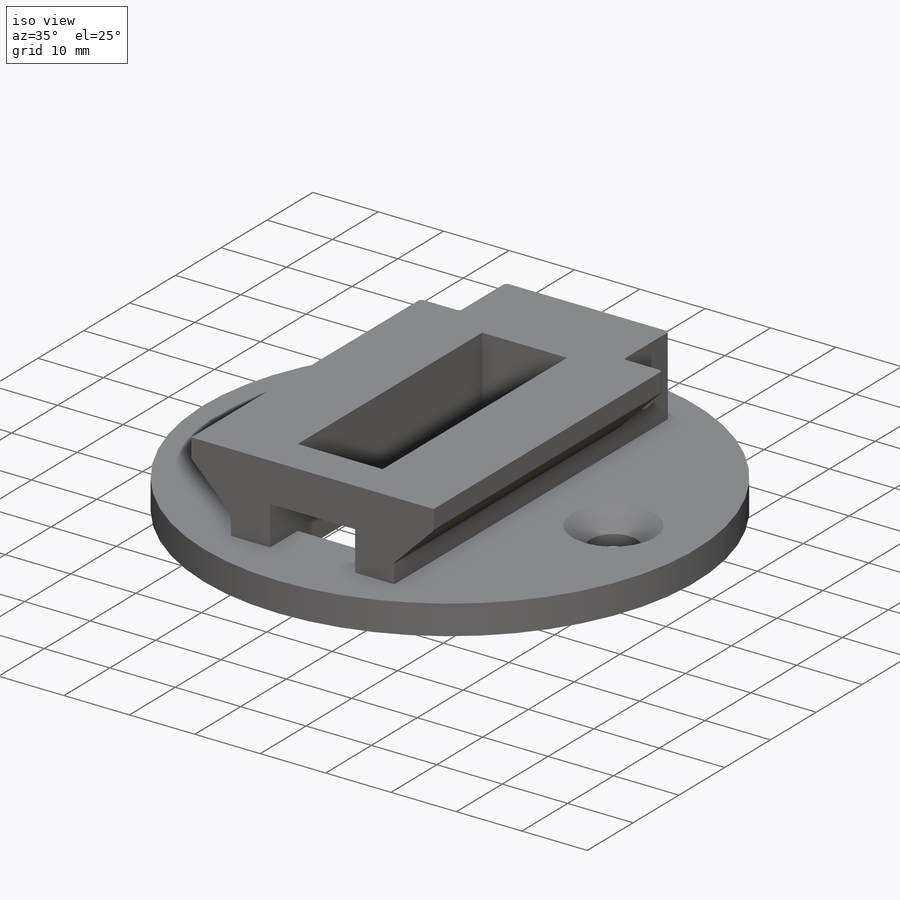
[diagram: iso view]
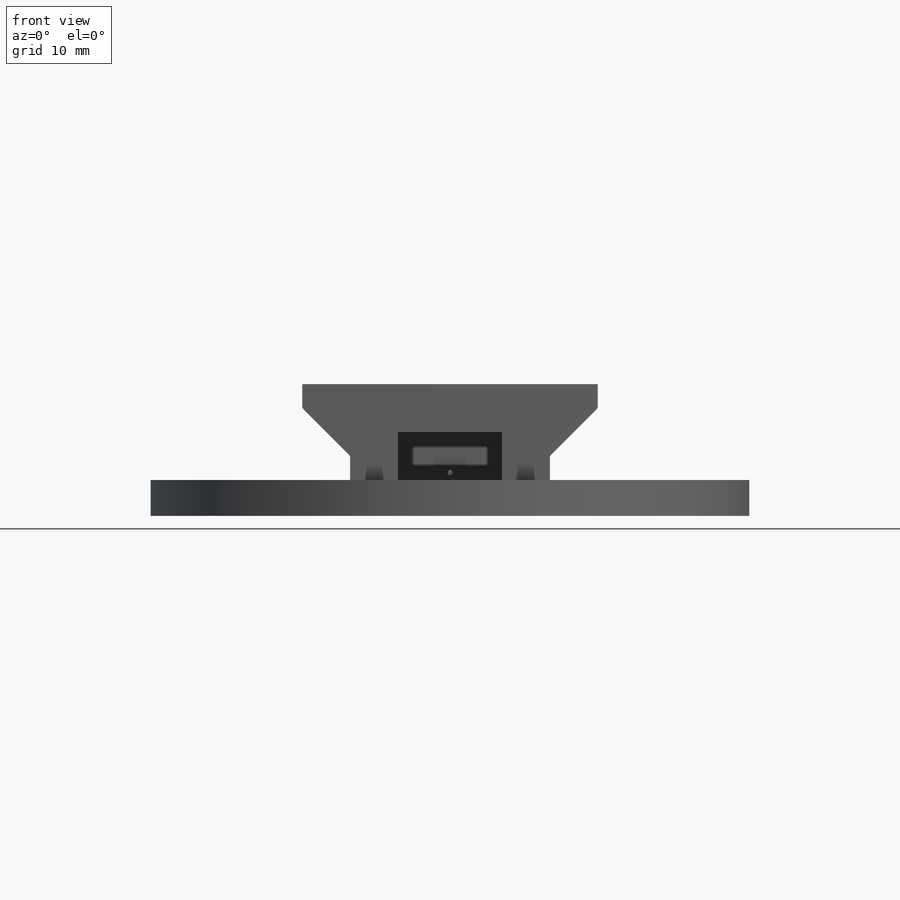
[diagram: front view]
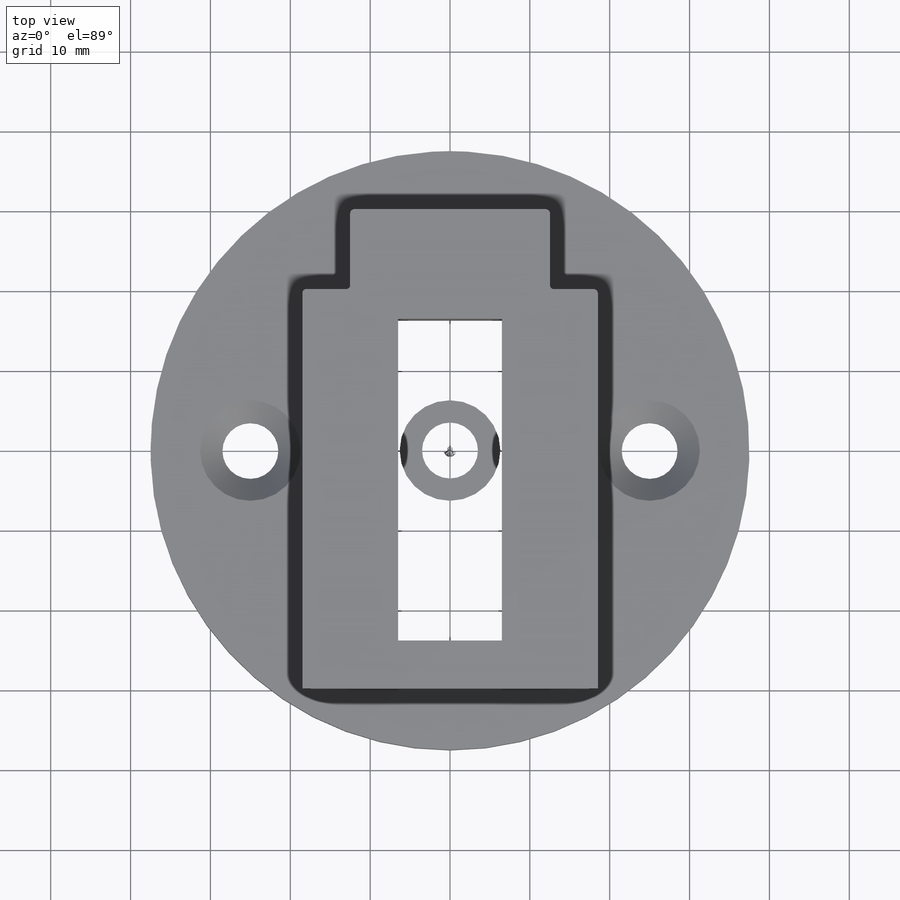
[diagram: top view]
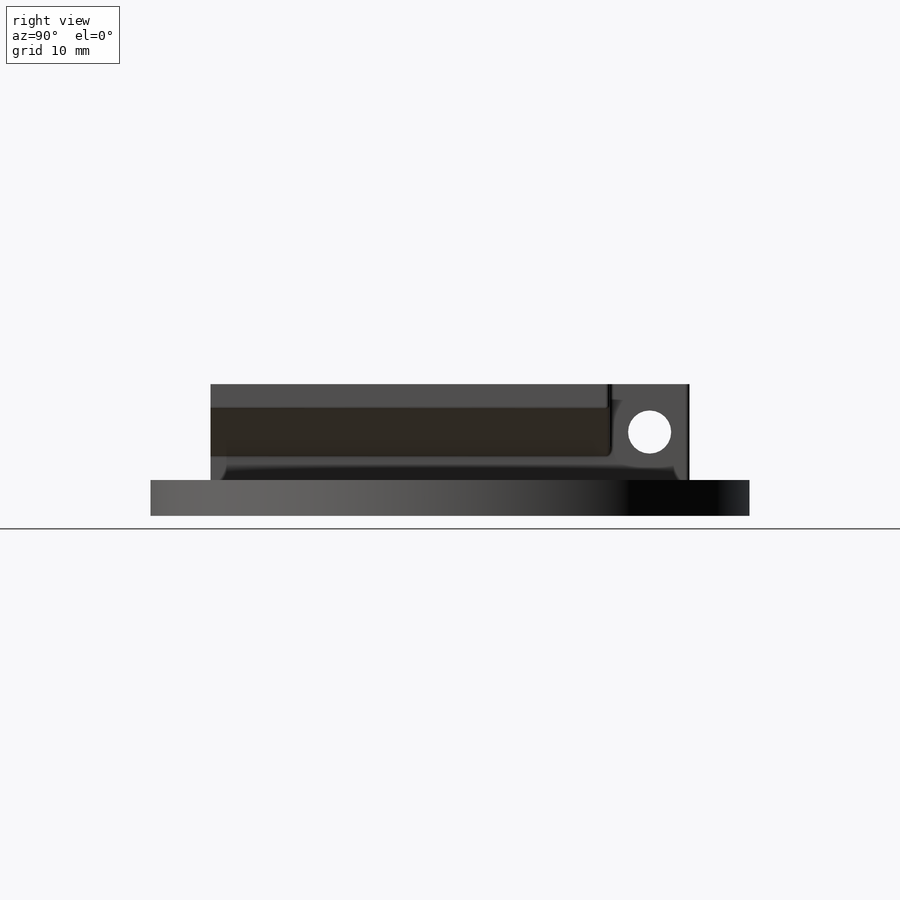
[diagram: right view]
SOLIDWORKS PART (.sldprt)
format: sldprt  version: not decoded by parser v0  size: 722,944 bytes
history: native  units: mm
features: sketch x11, cut_extrude x4, material x1, extrude x1, hole x1 + 1 further entry (+17 scaffold rows collapsed; 3 parser-record rows omitted)
feature tree (39):
  scaffold x17  (default folders/planes/origin — collapsed)
  material  "ABS"
  sketch  "Sketch1-dovetail_male"  dims[c1.D1=10.0mm c1.D2=~6.409122mm c2.D2=45.0deg c2.D3=3.0mm c2.D4=~14.511515mm c2.D1=12.0mm c3.D2=3.0mm c3.D3=~5.973698mm c4.D3=45.0deg c4.D4=25.0mm]
  sketch  "Sketch9-dovetail_male"  dims[c1.D1=12.0mm c1.D2=6.0mm c2.D1=~16.178239mm]
  sketch  "Sketch10-dovetail_male"  dims[D1=~2.410913mm]
  sketch  "Sketch11-dovetail_male"  dims[c1.D1=~30.096908mm c1.D2=~14.271345mm c2.D1=6.0mm c2.D2=6.0mm c2.D3=6.0mm]
  "dovetail_male"
  parser-record x3  (decoder bookkeeping rows leaked as tree rows — omitted from the tree; the rows remain in map.json)
  sketch  "Sketch5"  dims[D1=75.0mm]
  extrude  "UR Wrist Body"  Depth=4.5mm
  sketch  "Sketch6"  dims[c1.D1=50.0mm c1.D2=1.0mm c1.D3=1.0mm c2.D2=~63.050934mm]
  cut_extrude  "Cut-Extrude1"  [1 undecoded]
  hole  "CSK for M6 Flat Head Machine Screw1"  Diameter=7mm Depth=4.5mm
  sketch  "Sketch8"
  sketch  "Sketch7"  dims[hole-wizard template sketch: 54 standard entries collapsed; hole parameters kept: c17.Thru Hole Dia.=7.0mm c17.Thru Hole Depth=4.5mm c17.Near C'Sink Dia.=12.6mm c17.D4=~3.666174mm c17.Near C'Sink Angle=90.0deg]
  sketch  "Sketch12"  dims[c1.D2=3.0mm c1.D1=3.0mm c2.D2=3.0mm]
  cut_extrude  "Material Removal"  Depth=3mm
  sketch  "Sketch13"  dims[D1=0.0mm]
  cut_extrude  "Clearance Continuation"  [1 undecoded]
  sketch  "Sketch14"  dims[c1.D1=~4.697896mm c1.D2=~10.285782mm c2.D1=6.0mm]
  cut_extrude  "Wire Clearance"  [1 undecoded]
decode coverage: 13 of 17 modeling features carry decoded parameters; 1 rows unclassified (native names shown)
note: ~ marks probable driven/reference dimensions
note: 3 parameter values undecoded
summary: no parameter record found for 3 features
note: suppression state not decoded; provenance and decode notes live in map.json
